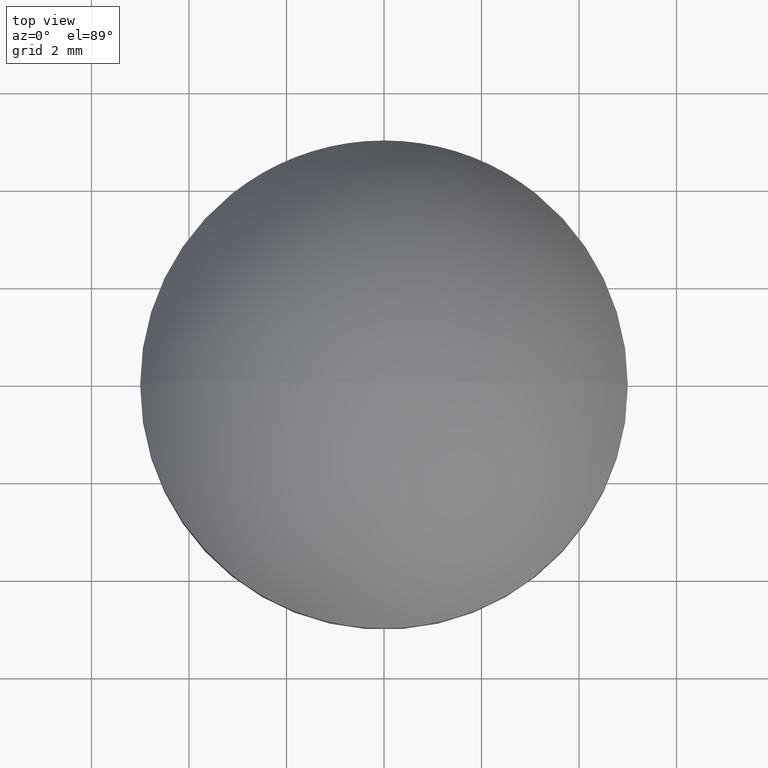
[diagram: clean part render]
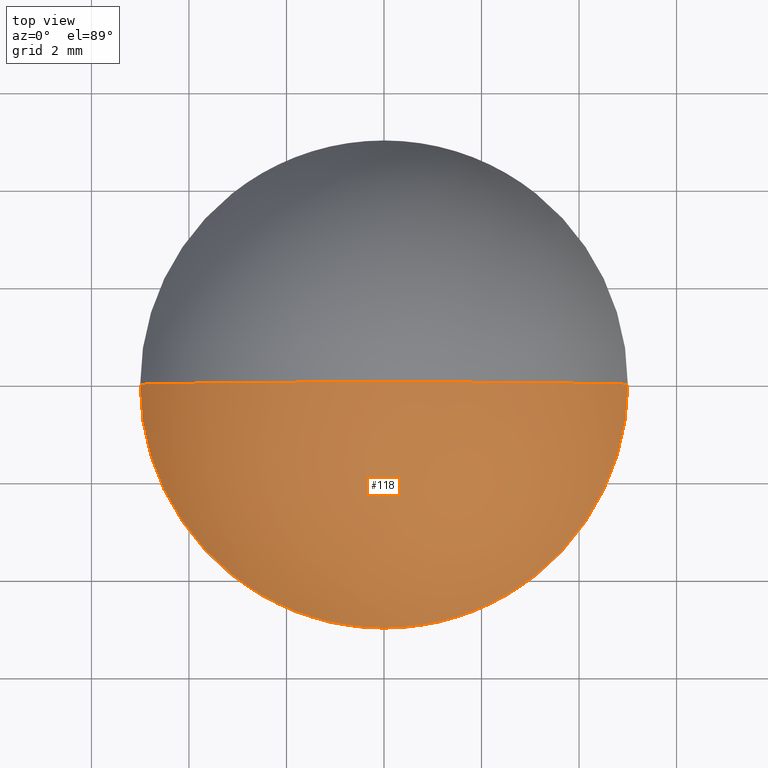
[diagram: same view with one face highlighted and labeled with its STEP entity id]
A machine part, top view. The second image highlights one B-rep face of the part: STEP entity #118.
In plain terms, the highlighted spherical surface has radius 5.8753 mm.
Its self-contained STEP definition (entity closure, byte-faithful):
#6 = EDGE_CURVE ( 'NONE', #167, #28, #36, .T. ) ;
#16 = AXIS2_PLACEMENT_3D ( 'NONE', #33, #50, #215 ) ;
#26 = ORIENTED_EDGE ( 'NONE', *, *, #30, .T. ) ;
#28 = VERTEX_POINT ( 'NONE', #126 ) ;
#30 = EDGE_CURVE ( 'NONE', #183, #167, #97, .T. ) ;
#32 = CARTESIAN_POINT ( 'NONE',  ( 0.000000000000000000, 0.000000000000000000, -0.8752867383512550337 ) ) ;
#33 = CARTESIAN_POINT ( 'NONE',  ( 0.000000000000000000, 0.000000000000000000, -0.8752867383512550337 ) ) ;
#36 = CIRCLE ( 'NONE', #181, 5.875286738351255700 ) ;
#50 = DIRECTION ( 'NONE',  ( -0.000000000000000000, -1.000000000000000000, 0.000000000000000000 ) ) ;
#51 = SPHERICAL_SURFACE ( 'NONE', #16, 5.875286738351255700 ) ;
#64 = ORIENTED_EDGE ( 'NONE', *, *, #6, .T. ) ;
#72 = CARTESIAN_POINT ( 'NONE',  ( -5.000000000000000000, 0.000000000000000000, 2.209999999999999964 ) ) ;
#75 = DIRECTION ( 'NONE',  ( -1.224646799147353207E-16, -1.000000000000000000, -0.000000000000000000 ) ) ;
#78 = DIRECTION ( 'NONE',  ( 0.000000000000000000, 0.000000000000000000, 1.000000000000000000 ) ) ;
#97 = CIRCLE ( 'NONE', #120, 5.000000000000000000 ) ;
#99 = DIRECTION ( 'NONE',  ( 0.000000000000000000, 1.000000000000000000, 0.000000000000000000 ) ) ;
#102 = EDGE_CURVE ( 'NONE', #183, #28, #212, .T. ) ;
#109 = EDGE_LOOP ( 'NONE', ( #26, #64, #131 ) ) ;
#118 = ADVANCED_FACE ( 'NONE', ( #133 ), #51, .T. ) ;
#120 = AXIS2_PLACEMENT_3D ( 'NONE', #209, #78, #143 ) ;
#126 = CARTESIAN_POINT ( 'NONE',  ( -3.597575549097378931E-16, 0.000000000000000000, 5.000000000000000888 ) ) ;
#131 = ORIENTED_EDGE ( 'NONE', *, *, #102, .F. ) ;
#133 = FACE_OUTER_BOUND ( 'NONE', #109, .T. ) ;
#139 = DIRECTION ( 'NONE',  ( 1.000000000000000000, -1.224646799147353207E-16, 0.000000000000000000 ) ) ;
#143 = DIRECTION ( 'NONE',  ( 1.000000000000000000, 0.000000000000000000, 0.000000000000000000 ) ) ;
#154 = CARTESIAN_POINT ( 'NONE',  ( 0.000000000000000000, 0.000000000000000000, -0.8752867383512550337 ) ) ;
#167 = VERTEX_POINT ( 'NONE', #201 ) ;
#181 = AXIS2_PLACEMENT_3D ( 'NONE', #154, #75, #139 ) ;
#183 = VERTEX_POINT ( 'NONE', #72 ) ;
#195 = DIRECTION ( 'NONE',  ( 0.000000000000000000, 0.000000000000000000, 1.000000000000000000 ) ) ;
#198 = AXIS2_PLACEMENT_3D ( 'NONE', #32, #99, #195 ) ;
#201 = CARTESIAN_POINT ( 'NONE',  ( 5.000000000000000000, 6.123233995736766282E-16, 2.209999999999999964 ) ) ;
#209 = CARTESIAN_POINT ( 'NONE',  ( 0.000000000000000000, 0.000000000000000000, 2.209999999999999964 ) ) ;
#212 = CIRCLE ( 'NONE', #198, 5.875286738351255700 ) ;
#215 = DIRECTION ( 'NONE',  ( -1.000000000000000000, 0.000000000000000000, 0.000000000000000000 ) ) ;